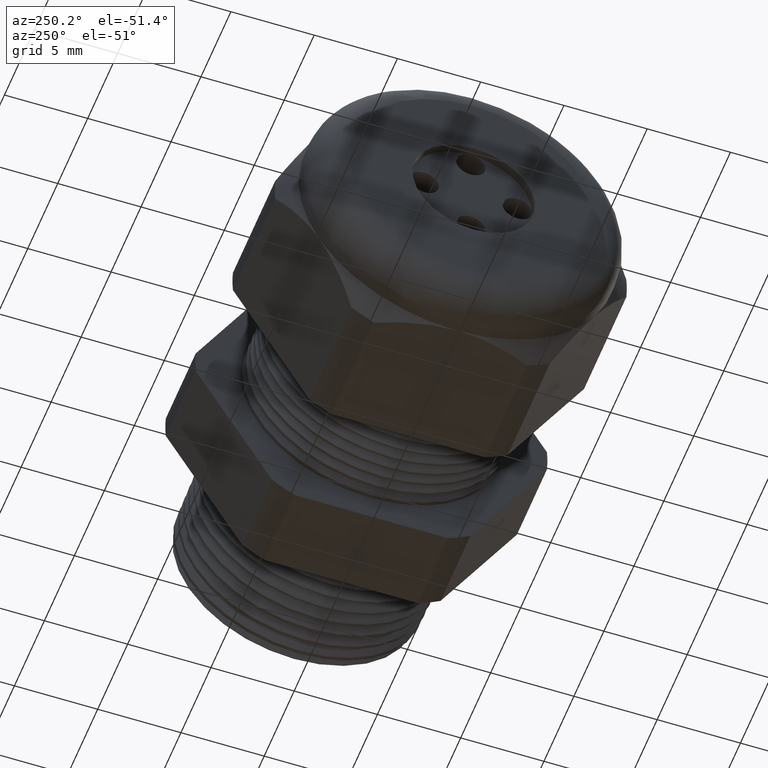
[diagram: clean part render]
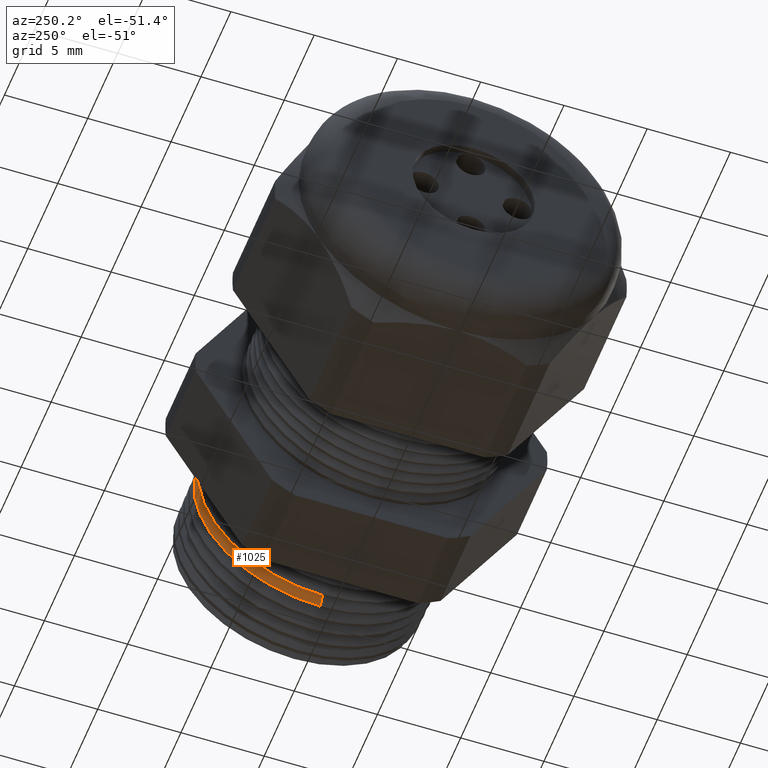
[diagram: same view with one face highlighted and labeled with its STEP entity id]
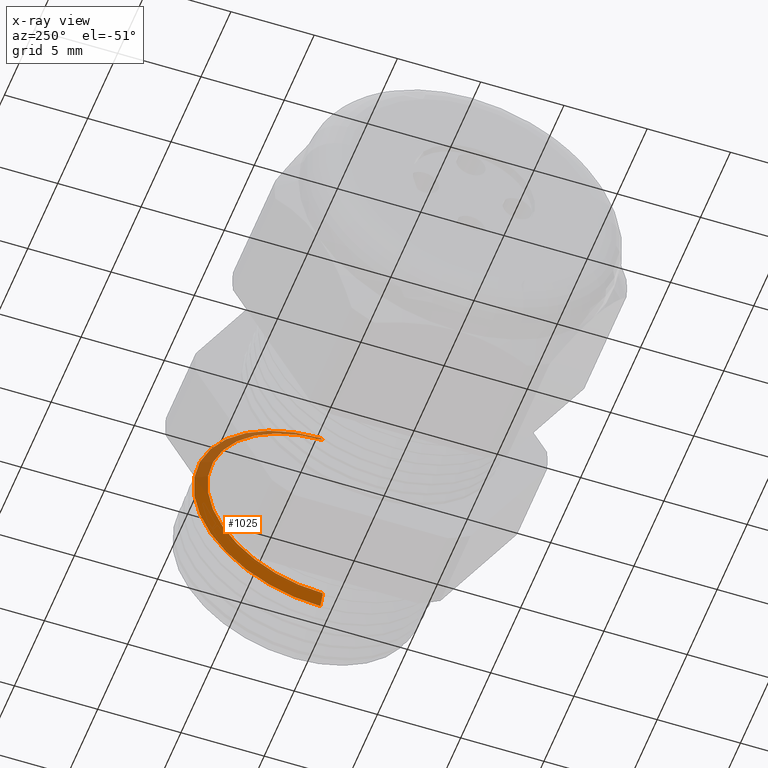
[diagram: x-ray of the same camera — body ghosted, the highlighted face saturated]
A machine part, auxiliary view. The second image highlights one B-rep face of the part: STEP entity #1025.
The next image is the same camera in x-ray: the body ghosted, the highlighted face saturated — about 28% of this face is hidden behind the body in this view.
In plain terms, the highlighted conical surface has half-angle 58.5 deg.
Its self-contained STEP definition (entity closure, byte-faithful):
#1025 = ADVANCED_FACE ( 'NONE', ( #2979 ), #2977, .T. ) ;
#1026 = EDGE_LOOP ( 'NONE', ( #1027, #1076, #1084, #1035 ) ) ;
#1027 = ORIENTED_EDGE ( 'NONE', *, *, #1091, .T. ) ;
#1028 = VERTEX_POINT ( 'NONE', #2973 ) ;
#1034 = VERTEX_POINT ( 'NONE', #2963 ) ;
#1035 = ORIENTED_EDGE ( 'NONE', *, *, #1036, .F. ) ;
#1036 = EDGE_CURVE ( 'NONE', #1028, #1034, #3024, .T. ) ;
#1075 = VERTEX_POINT ( 'NONE', #3081 ) ;
#1076 = ORIENTED_EDGE ( 'NONE', *, *, #1077, .T. ) ;
#1077 = EDGE_CURVE ( 'NONE', #1075, #1083, #3080, .T. ) ;
#1083 = VERTEX_POINT ( 'NONE', #3074 ) ;
#1084 = ORIENTED_EDGE ( 'NONE', *, *, #1085, .T. ) ;
#1085 = EDGE_CURVE ( 'NONE', #1083, #1034, #3073, .T. ) ;
#1091 = EDGE_CURVE ( 'NONE', #1028, #1075, #3062, .T. ) ;
#2963 = CARTESIAN_POINT ( 'NONE',  ( -0.1720291532523867700, 3.672013048533980300E-017, -0.2998426200183251800 ) ) ;
#2973 = CARTESIAN_POINT ( 'NONE',  ( -0.1884707356790751900, 3.512769114802295800E-017, -0.2730123959962614800 ) ) ;
#2974 = DIRECTION ( 'NONE',  ( 0.0000000000000000000, 0.0000000000000000000, -1.000000000000000000 ) ) ;
#2975 = DIRECTION ( 'NONE',  ( 1.000000000000000000, 0.0000000000000000000, 0.0000000000000000000 ) ) ;
#2976 = AXIS2_PLACEMENT_3D ( 'NONE', #2978, #2975, #2974 ) ;
#2977 = CONICAL_SURFACE ( 'NONE', #2976, 0.2730123959962614800, 1.021017612416701200 ) ;
#2978 = CARTESIAN_POINT ( 'NONE',  ( -0.1884707356790751900, 0.0000000000000000000, 0.0000000000000000000 ) ) ;
#2979 = FACE_OUTER_BOUND ( 'NONE', #1026, .T. ) ;
#3021 = DIRECTION ( 'NONE',  ( 0.5224985647159332600, 0.0000000000000000000, -0.8526401643541019500 ) ) ;
#3022 = VECTOR ( 'NONE', #3021, 39.37007874015747400 ) ;
#3023 = CARTESIAN_POINT ( 'NONE',  ( -0.1884707356790751900, 0.0000000000000000000, -0.2730123959962614800 ) ) ;
#3024 = LINE ( 'NONE', #3023, #3022 ) ;
#3058 = DIRECTION ( 'NONE',  ( 0.0000000000000000000, 0.0000000000000000000, -1.000000000000000000 ) ) ;
#3059 = DIRECTION ( 'NONE',  ( 1.000000000000000000, 0.0000000000000000000, 0.0000000000000000000 ) ) ;
#3060 = CARTESIAN_POINT ( 'NONE',  ( -0.1884707356790751900, 0.0000000000000000000, 0.0000000000000000000 ) ) ;
#3061 = AXIS2_PLACEMENT_3D ( 'NONE', #3060, #3059, #3058 ) ;
#3062 = CIRCLE ( 'NONE', #3061, 0.2730123959962614800 ) ;
#3069 = DIRECTION ( 'NONE',  ( 0.0000000000000000000, 0.0000000000000000000, -1.000000000000000000 ) ) ;
#3070 = DIRECTION ( 'NONE',  ( -1.000000000000000000, 0.0000000000000000000, 0.0000000000000000000 ) ) ;
#3071 = CARTESIAN_POINT ( 'NONE',  ( -0.1720291532523867700, 0.0000000000000000000, 0.0000000000000000000 ) ) ;
#3072 = AXIS2_PLACEMENT_3D ( 'NONE', #3071, #3070, #3069 ) ;
#3073 = CIRCLE ( 'NONE', #3072, 0.2998426200183251200 ) ;
#3074 = CARTESIAN_POINT ( 'NONE',  ( -0.1720291532523867700, 0.0000000000000000000, 0.2998426200183251800 ) ) ;
#3077 = DIRECTION ( 'NONE',  ( 0.5224985647159332600, 1.044183048100724200E-016, 0.8526401643541019500 ) ) ;
#3078 = VECTOR ( 'NONE', #3077, 39.37007874015747400 ) ;
#3079 = CARTESIAN_POINT ( 'NONE',  ( -0.1884707356790751900, 3.343437568843712800E-017, 0.2730123959962614800 ) ) ;
#3080 = LINE ( 'NONE', #3079, #3078 ) ;
#3081 = CARTESIAN_POINT ( 'NONE',  ( -0.1884707356790751900, 0.0000000000000000000, 0.2730123959962614800 ) ) ;